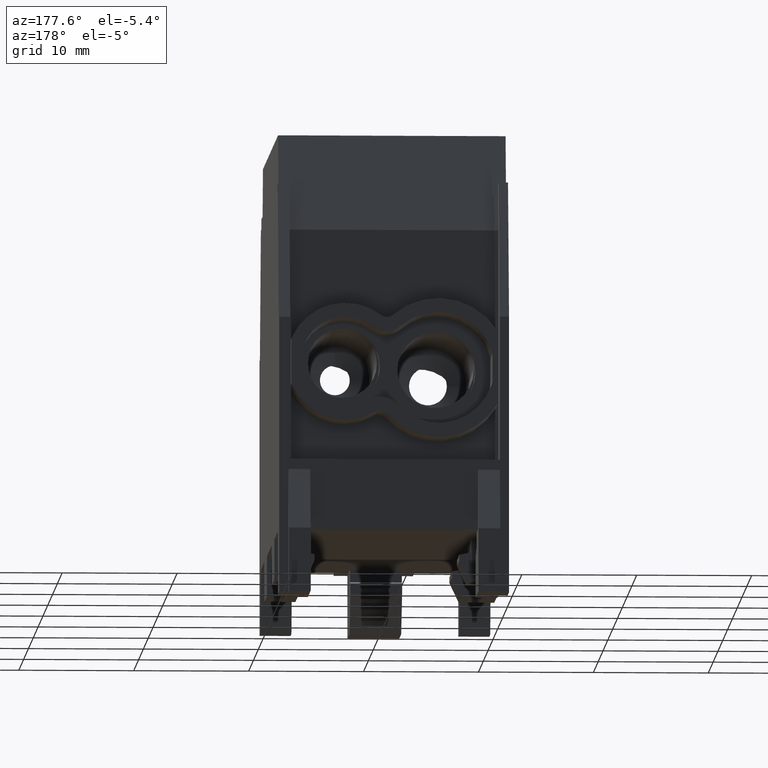
[diagram: clean part render]
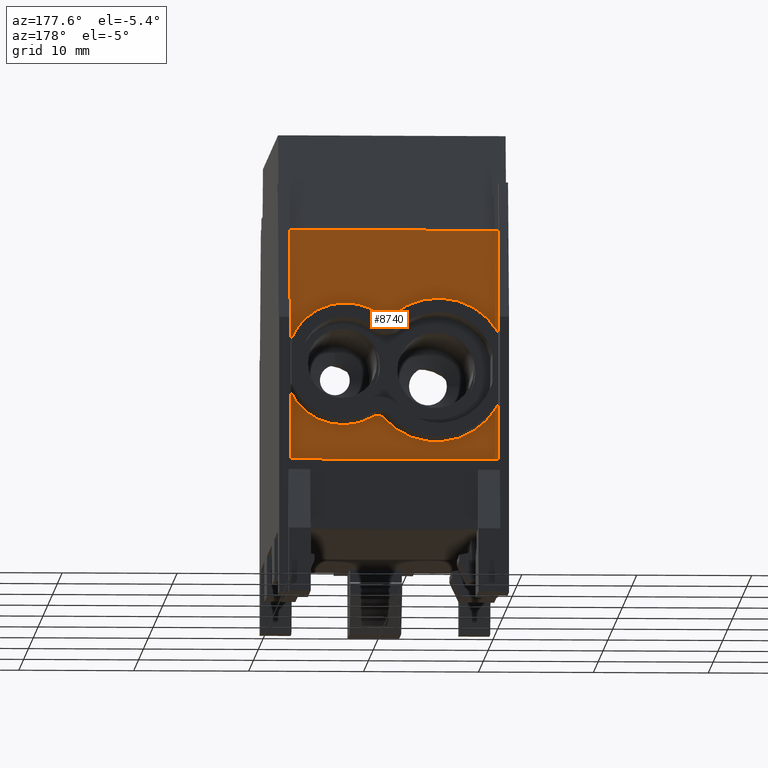
[diagram: same view with one face highlighted and labeled with its STEP entity id]
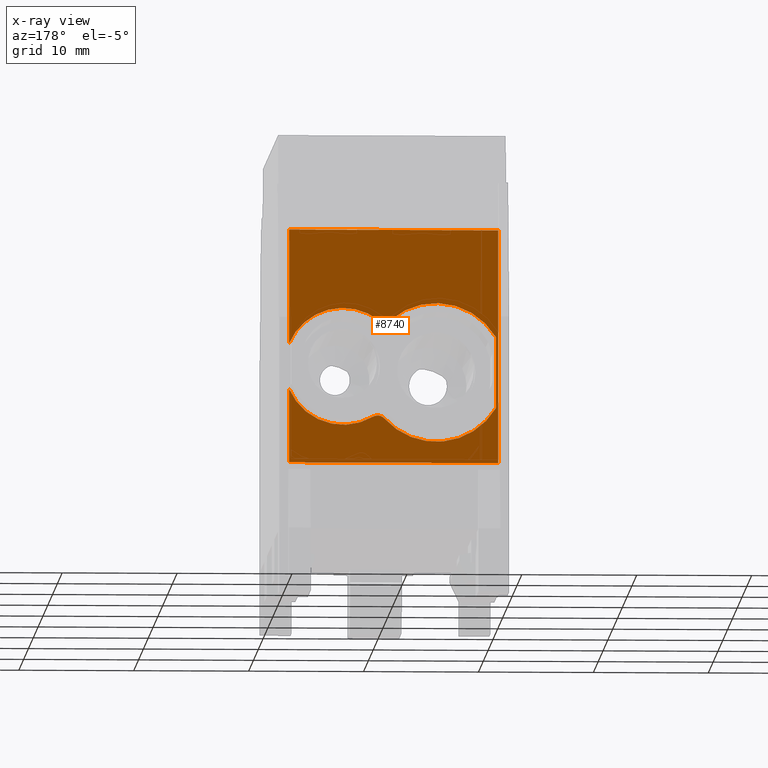
[diagram: x-ray of the same camera — body ghosted, the highlighted face saturated]
A machine part, auxiliary view. The second image highlights one B-rep face of the part: STEP entity #8740.
The next image is the same camera in x-ray: the body ghosted, the highlighted face saturated — about 0% of this face is hidden behind the body in this view.
In plain terms, the highlighted planar face has unit normal (-0, -1, -0).
Its self-contained STEP definition (entity closure, byte-faithful):
#7690=CARTESIAN_POINT('',(-11.5,17.15,-9.445359338705));
#7700=DIRECTION('',(-4.78693427719747E-32,-1.,-2.58410026187826E-17));
#7710=DIRECTION('',(-5.55111512312577E-17,-2.58410026187826E-17,1.));
#7720=AXIS2_PLACEMENT_3D('',#7690,#7700,#7710);
#7730=PLANE('',#7720);
#7740=CARTESIAN_POINT('',(-1.60000000000001,17.15,-29.645359338705));
#7750=DIRECTION('',(1.,-4.93038065763132E-32,5.55111512312577E-17));
#7760=VECTOR('',#7750,1.);
#7770=LINE('',#7740,#7760);
#7780=CARTESIAN_POINT('',(-10.8,17.15,-29.645359338705));
#7790=VERTEX_POINT('',#7780);
#7800=CARTESIAN_POINT('',(7.39999999999999,17.15,-29.645359338705));
#7810=VERTEX_POINT('',#7800);
#7820=EDGE_CURVE('',#7790,#7810,#7770,.T.);
#7830=ORIENTED_EDGE('',*,*,#7820,.F.);
#7840=CARTESIAN_POINT('',(7.39999999999999,17.15,5.7028547740738E-15));
#7850=DIRECTION('',(5.55111512312577E-17,2.58410026187826E-17,-1.));
#7860=VECTOR('',#7850,1.);
#7870=LINE('',#7840,#7860);
#7880=CARTESIAN_POINT('',(7.39999999999999,17.15,-23.2252583260273));
#7890=VERTEX_POINT('',#7880);
#7900=EDGE_CURVE('',#7890,#7810,#7870,.T.);
#7910=ORIENTED_EDGE('',*,*,#7900,.T.);
#7920=CARTESIAN_POINT('',(2.69999999999999,17.15,-21.245359338705));
#7930=DIRECTION('',(2.77555756156289E-16,1.,5.80952514931361E-16));
#7940=DIRECTION('',(0.92156862745098,-3.02519133214885E-17,
-0.388215487710262));
#7950=AXIS2_PLACEMENT_3D('',#7920,#7930,#7940);
#7960=CIRCLE('',#7950,5.1);
#7970=CARTESIAN_POINT('',(0.103061198291309,17.15,-25.6346541408549));
#7980=VERTEX_POINT('',#7970);
#7990=EDGE_CURVE('',#7890,#7980,#7960,.T.);
#8000=ORIENTED_EDGE('',*,*,#7990,.F.);
#8010=CARTESIAN_POINT('',(-0.304301750996325,17.15,-26.3231709725646));
#8020=DIRECTION('',(-2.77555756156289E-16,-1.,-5.80952514931361E-16));
#8030=DIRECTION('',(0.509203686609545,-6.41326895467447E-16,
0.86064603963723));
#8040=AXIS2_PLACEMENT_3D('',#8010,#8020,#8030);
#8050=CIRCLE('',#8040,0.8);
#8060=CARTESIAN_POINT('',(-0.899419794675588,17.15,-25.7885360372234));
#8070=VERTEX_POINT('',#8060);
#8080=EDGE_CURVE('',#7980,#8070,#8050,.T.);
#8090=ORIENTED_EDGE('',*,*,#8080,.F.);
#8100=CARTESIAN_POINT('',(-5.4,17.15,-21.745359338705));
#8110=DIRECTION('',(2.77555756156289E-16,1.,5.80952514931361E-16));
#8120=DIRECTION('',(0.743897554599077,1.81773839551287E-16,
-0.668293669176593));
#8130=AXIS2_PLACEMENT_3D('',#8100,#8110,#8120);
#8140=CIRCLE('',#8130,6.05);
#8150=CARTESIAN_POINT('',(-10.6,17.15,-24.8376885579182));
#8160=VERTEX_POINT('',#8150);
#8170=EDGE_CURVE('',#8070,#8160,#8140,.T.);
#8180=ORIENTED_EDGE('',*,*,#8170,.F.);
#8190=CARTESIAN_POINT('',(-10.6,17.15,4.70365405191116E-15));
#8200=DIRECTION('',(-5.55111512312576E-17,-2.58410026187826E-17,1.));
#8210=VECTOR('',#8200,1.);
#8220=LINE('',#8190,#8210);
#8230=CARTESIAN_POINT('',(-10.6,17.15,-18.6530301194917));
#8240=VERTEX_POINT('',#8230);
#8250=EDGE_CURVE('',#8160,#8240,#8220,.T.);
#8260=ORIENTED_EDGE('',*,*,#8250,.F.);
#8270=CARTESIAN_POINT('',(-5.4,17.15,-21.745359338705));
#8280=DIRECTION('',(2.77555756156289E-16,1.,5.80952514931361E-16));
#8290=DIRECTION('',(-0.859504132231404,-5.83812404768541E-17,
0.511128796564174));
#8300=AXIS2_PLACEMENT_3D('',#8270,#8280,#8290);
#8310=CIRCLE('',#8300,6.05);
#8320=CARTESIAN_POINT('',(-1.43085042572115,17.15,-17.1793598142852));
#8330=VERTEX_POINT('',#8320);
#8340=EDGE_CURVE('',#8240,#8330,#8310,.T.);
#8350=ORIENTED_EDGE('',*,*,#8340,.F.);
#8360=CARTESIAN_POINT('',(-0.90600420102312,17.15,-16.5755912821305));
#8370=DIRECTION('',(-2.77555756156289E-16,-1.,-5.80952514931361E-16));
#8380=DIRECTION('',(-1.19348975147204E-15,5.80952514931361E-16,-1.));
#8390=AXIS2_PLACEMENT_3D('',#8360,#8370,#8380);
#8400=CIRCLE('',#8390,0.8);
#8410=CARTESIAN_POINT('',(-0.417054478850497,17.15,-17.2087801711575));
#8420=VERTEX_POINT('',#8410);
#8430=EDGE_CURVE('',#8330,#8420,#8400,.T.);
#8440=ORIENTED_EDGE('',*,*,#8430,.F.);
#8450=CARTESIAN_POINT('',(2.69999999999999,17.15,-21.245359338705));
#8460=DIRECTION('',(2.77555756156289E-16,1.,5.80952514931361E-16));
#8470=DIRECTION('',(1.18641480082492E-16,-5.80952514931361E-16,1.));
#8480=AXIS2_PLACEMENT_3D('',#8450,#8460,#8470);
#8490=CIRCLE('',#8480,5.1);
#8500=CARTESIAN_POINT('',(7.39999999999999,17.15,-19.2654603513827));
#8510=VERTEX_POINT('',#8500);
#8520=EDGE_CURVE('',#8420,#8510,#8490,.T.);
#8530=ORIENTED_EDGE('',*,*,#8520,.F.);
#8540=CARTESIAN_POINT('',(7.39999999999999,17.15,-9.31412634341613));
#8550=VERTEX_POINT('',#8540);
#8560=EDGE_CURVE('',#8550,#8510,#7870,.T.);
#8570=ORIENTED_EDGE('',*,*,#8560,.T.);
#8580=CARTESIAN_POINT('',(-1.60000000000001,17.15,-9.31412634341613));
#8590=DIRECTION('',(-1.,4.93038065763132E-32,-5.55111512312577E-17));
#8600=VECTOR('',#8590,1.);
#8610=LINE('',#8580,#8600);
#8620=CARTESIAN_POINT('',(-10.8,17.15,-9.31412634341613));
#8630=VERTEX_POINT('',#8620);
#8640=EDGE_CURVE('',#8550,#8630,#8610,.T.);
#8650=ORIENTED_EDGE('',*,*,#8640,.F.);
#8660=CARTESIAN_POINT('',(-10.8,17.15,4.69255182166491E-15));
#8670=DIRECTION('',(5.55111512312574E-17,2.58410026187826E-17,-1.));
#8680=VECTOR('',#8670,1.);
#8690=LINE('',#8660,#8680);
#8700=EDGE_CURVE('',#8630,#7790,#8690,.T.);
#8710=ORIENTED_EDGE('',*,*,#8700,.F.);
#8720=EDGE_LOOP('',(#8710,#8650,#8570,#8530,#8440,#8350,#8260,#8180,
#8090,#8000,#7910,#7830));
#8730=FACE_OUTER_BOUND('',#8720,.T.);
#8740=ADVANCED_FACE('',(#8730),#7730,.F.);